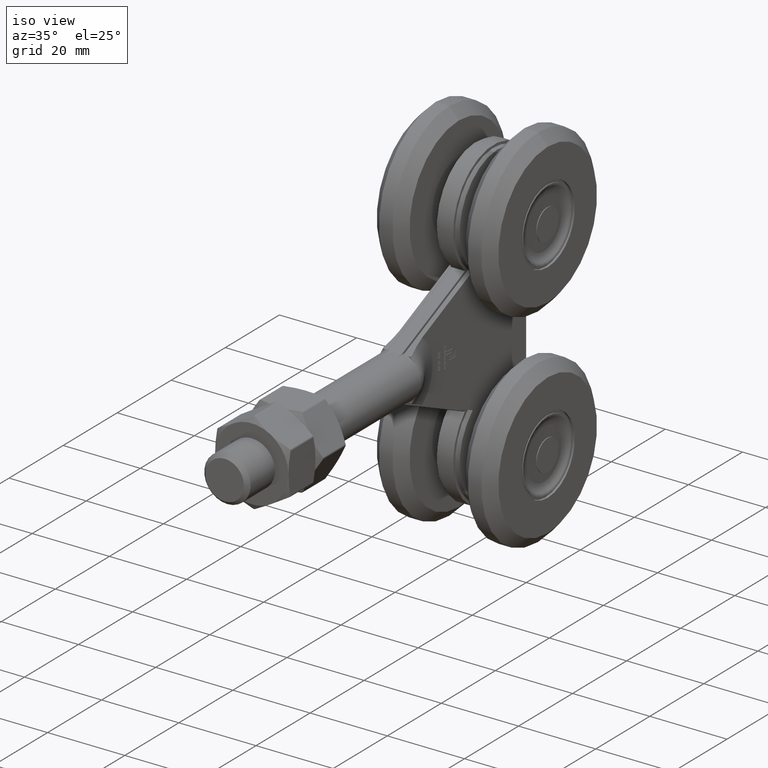
[diagram: clean part render]
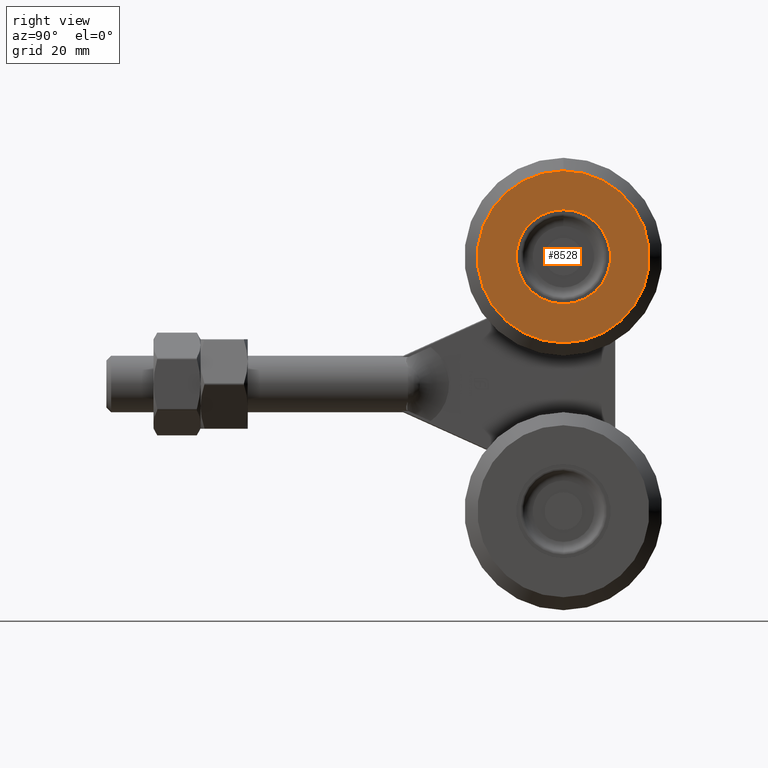
[diagram: tour spotlight — one face highlighted and labeled with its STEP entity id]
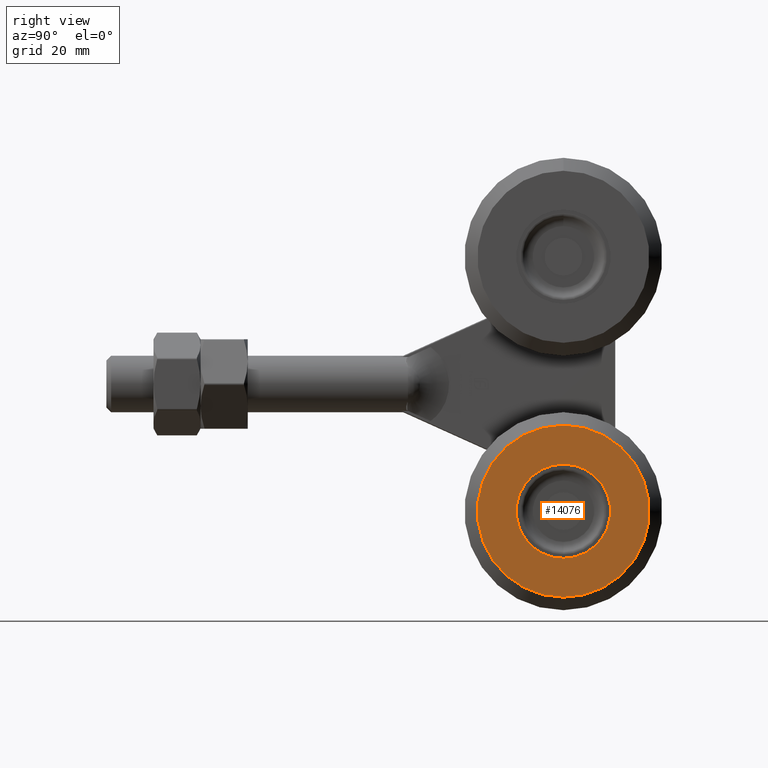
[diagram: tour spotlight — one face highlighted and labeled with its STEP entity id]
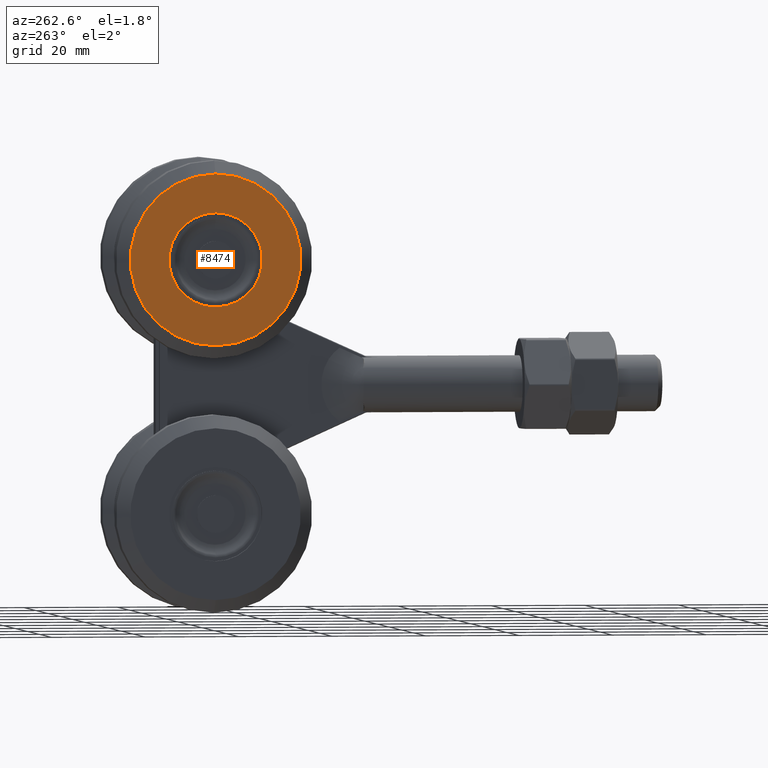
[diagram: tour spotlight — one face highlighted and labeled with its STEP entity id]
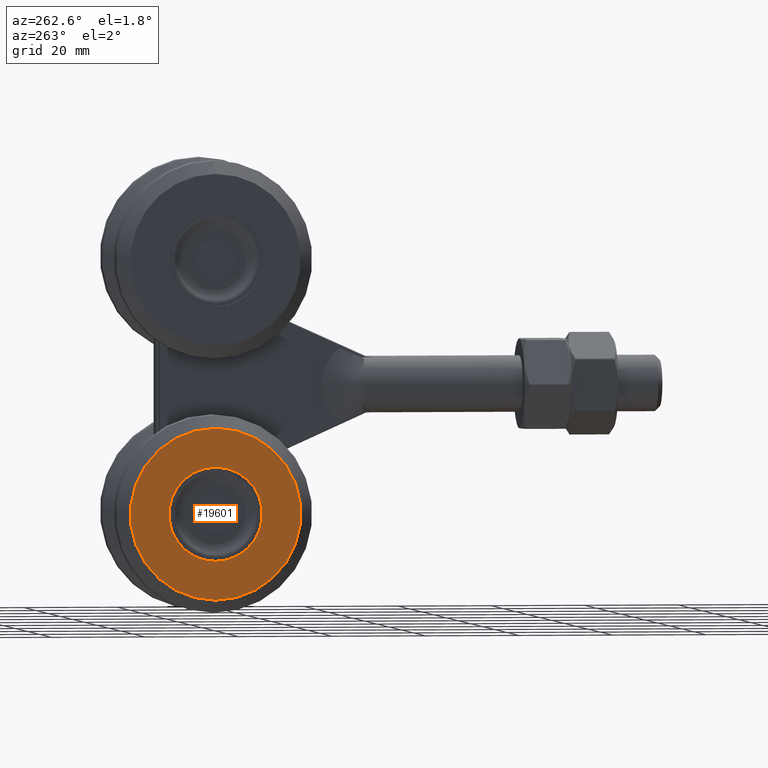
[diagram: tour spotlight — one face highlighted and labeled with its STEP entity id]
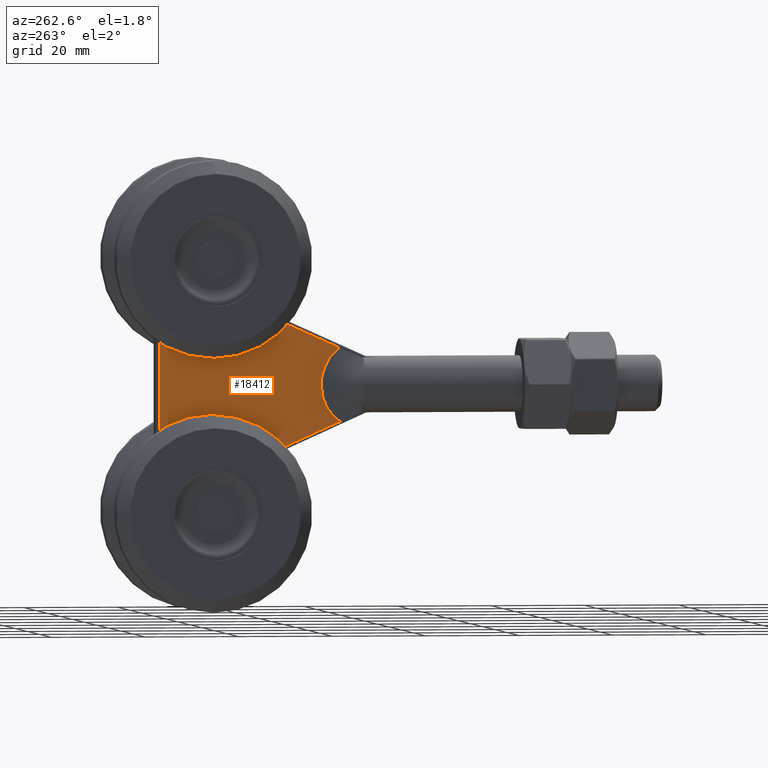
[diagram: tour spotlight — one face highlighted and labeled with its STEP entity id]
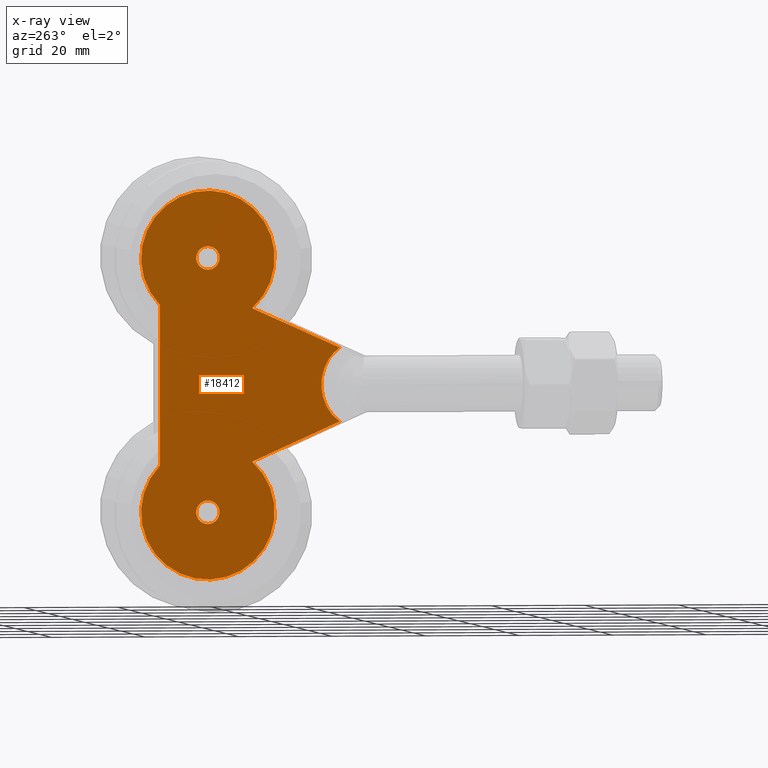
[diagram: x-ray of the same camera — body ghosted, this tour face saturated]
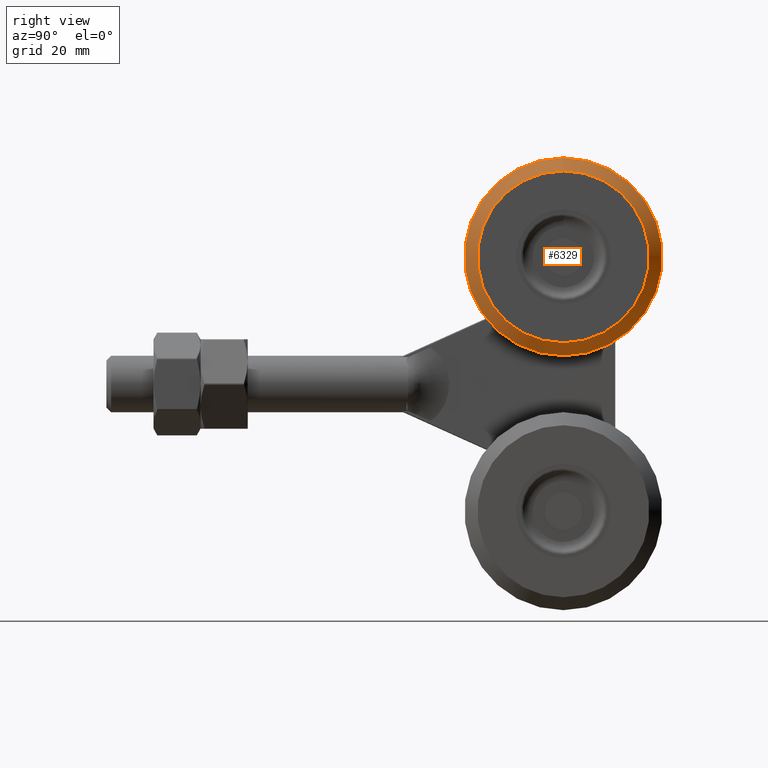
[diagram: tour spotlight — one face highlighted and labeled with its STEP entity id]
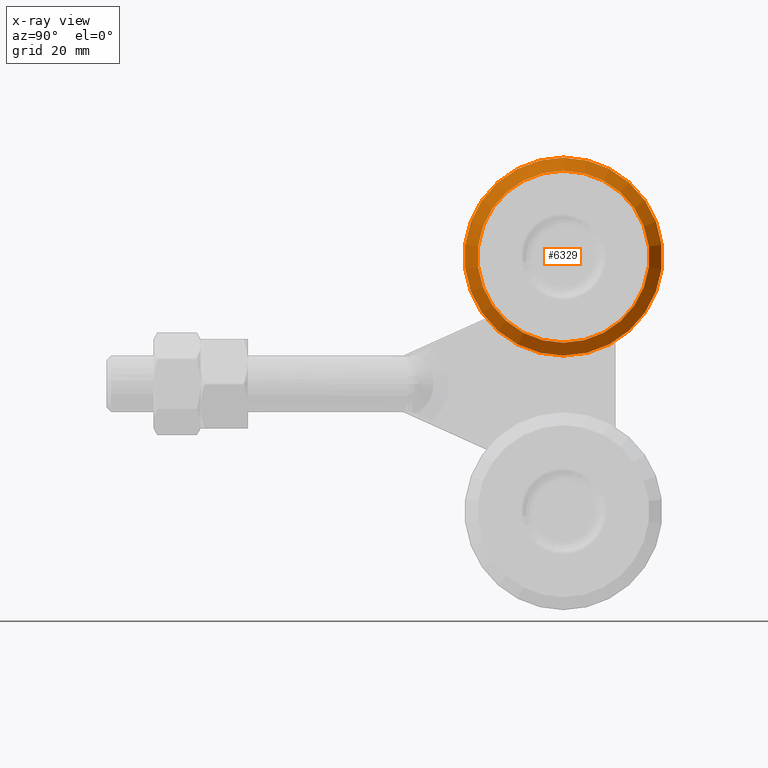
[diagram: x-ray of the same camera — body ghosted, this tour face saturated]
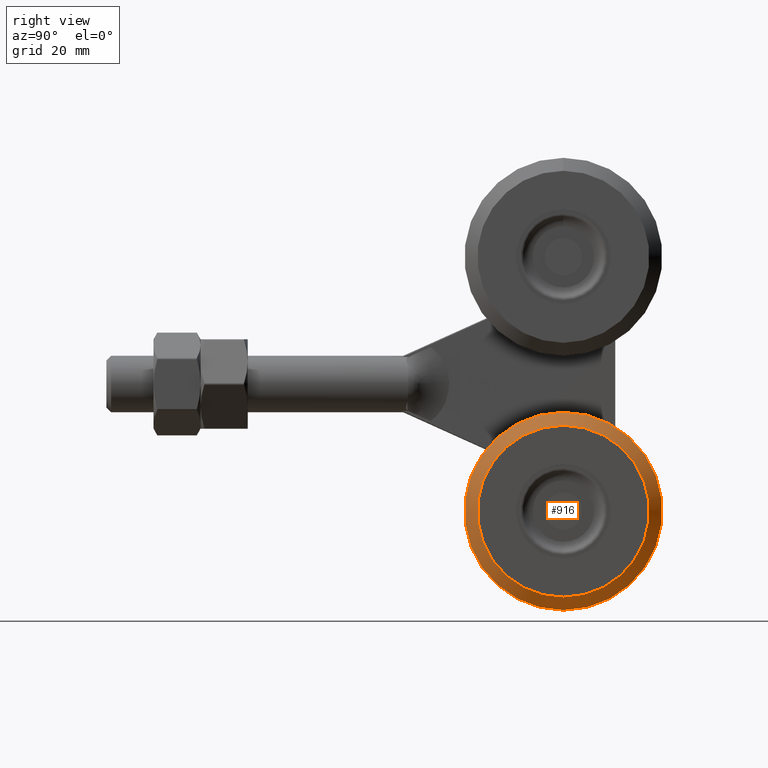
[diagram: tour spotlight — one face highlighted and labeled with its STEP entity id]
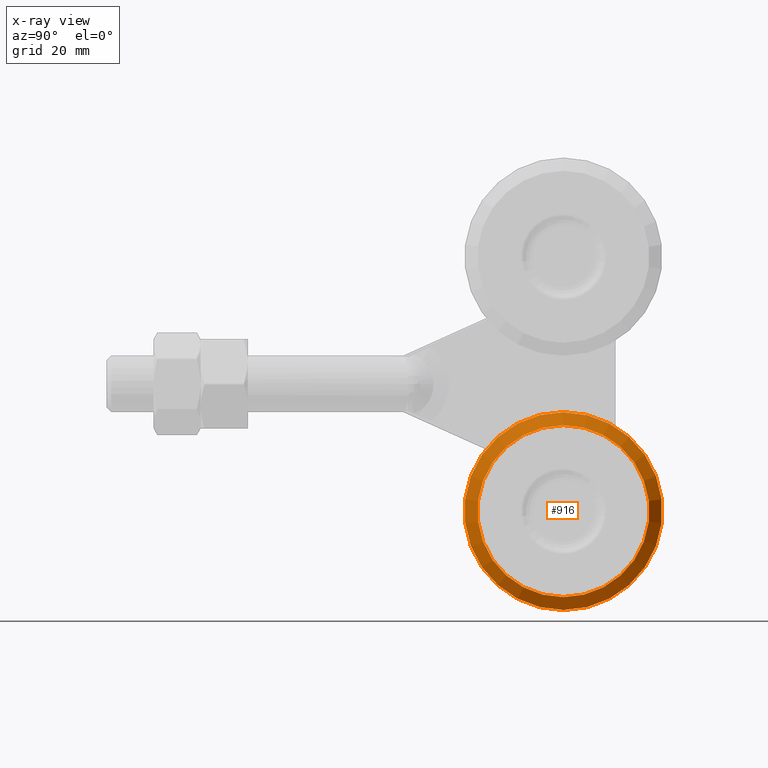
[diagram: x-ray of the same camera — body ghosted, this tour face saturated]
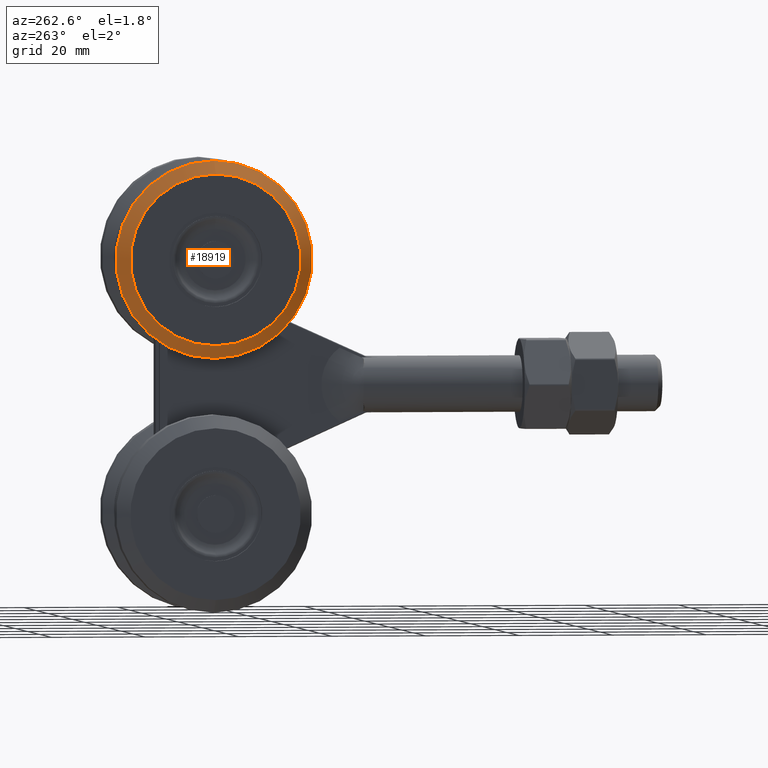
[diagram: tour spotlight — one face highlighted and labeled with its STEP entity id]
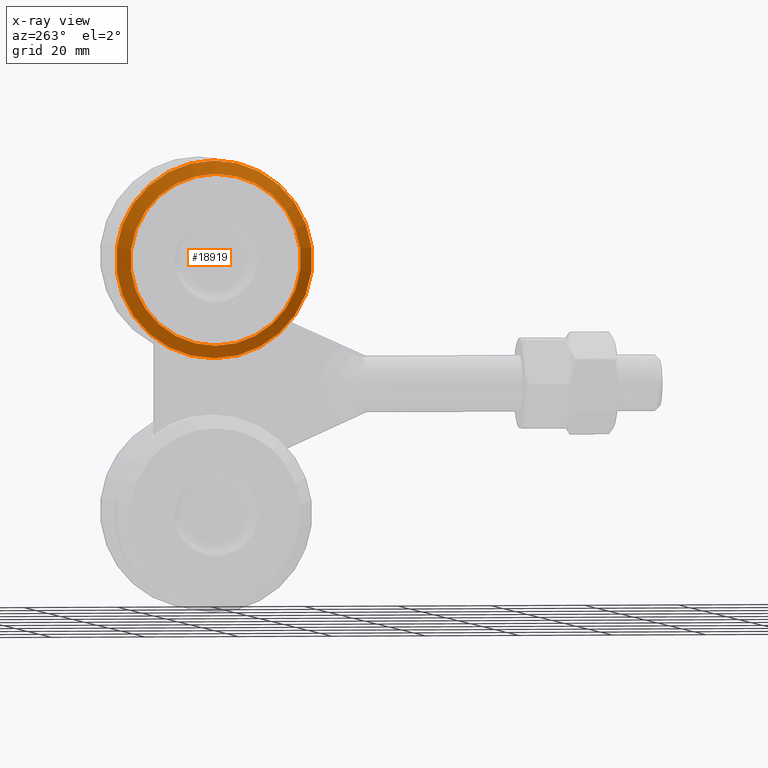
[diagram: x-ray of the same camera — body ghosted, this tour face saturated]
A machine part: a face-by-face anatomy tour. The part has 520 B-rep faces; the first image is the clean iso view, then the 8 largest visible faces are spotlighted one at a time (largest first), each with its STEP entity span.

Face 1 — right view, entity #8528. In plain terms, the highlighted planar face has unit normal (-1, 0, 0).
Definition (entity closure, byte-faithful):
#2812 = ORIENTED_EDGE ( 'NONE', *, *, #13296, .F. ) ;
#3657 = AXIS2_PLACEMENT_3D ( 'NONE', #13446, #16503, #13504 ) ;
#3667 = DIRECTION ( 'NONE',  ( 0.000000000000000000, 0.000000000000000000, 1.000000000000000000 ) ) ;
#3902 = VERTEX_POINT ( 'NONE', #18416 ) ;
#4472 = PLANE ( 'NONE',  #3657 ) ;
#5451 = CIRCLE ( 'NONE', #15652, 18.25000000000001421 ) ;
#6477 = EDGE_LOOP ( 'NONE', ( #18968 ) ) ;
#7162 = FACE_OUTER_BOUND ( 'NONE', #8350, .T. ) ;
#8129 = FACE_BOUND ( 'NONE', #6477, .T. ) ;
#8169 = CARTESIAN_POINT ( 'NONE',  ( 15.74999999999999289, 34.00000000000000000, 27.00000000000000000 ) ) ;
#8350 = EDGE_LOOP ( 'NONE', ( #2812 ) ) ;
#8528 = ADVANCED_FACE ( 'NONE', ( #7162, #8129 ), #4472, .F. ) ;
#9746 = DIRECTION ( 'NONE',  ( -1.000000000000000000, -0.000000000000000000, -0.000000000000000000 ) ) ;
#13296 = EDGE_CURVE ( 'NONE', #17190, #17190, #5451, .T. ) ;
#13446 = CARTESIAN_POINT ( 'NONE',  ( 15.74999999999999289, 52.25000000000001421, 27.00000000000000000 ) ) ;
#13504 = DIRECTION ( 'NONE',  ( -0.000000000000000000, 0.000000000000000000, 1.000000000000000000 ) ) ;
#14506 = EDGE_CURVE ( 'NONE', #3902, #3902, #16583, .T. ) ;
#15563 = CARTESIAN_POINT ( 'NONE',  ( 15.74999999999999289, 34.00000000000000000, 45.25000000000001421 ) ) ;
#15652 = AXIS2_PLACEMENT_3D ( 'NONE', #8169, #9746, #3667 ) ;
#15806 = AXIS2_PLACEMENT_3D ( 'NONE', #16195, #16269, #17583 ) ;
#16195 = CARTESIAN_POINT ( 'NONE',  ( 15.74999999999999289, 34.00000000000000000, 27.00000000000000000 ) ) ;
#16269 = DIRECTION ( 'NONE',  ( -1.000000000000000000, -0.000000000000000000, -0.000000000000000000 ) ) ;
#16503 = DIRECTION ( 'NONE',  ( -1.000000000000000000, 0.000000000000000000, -0.000000000000000000 ) ) ;
#16583 = CIRCLE ( 'NONE', #15806, 10.00000000000000533 ) ;
#17190 = VERTEX_POINT ( 'NONE', #15563 ) ;
#17583 = DIRECTION ( 'NONE',  ( 0.000000000000000000, 0.000000000000000000, 1.000000000000000000 ) ) ;
#18416 = CARTESIAN_POINT ( 'NONE',  ( 15.74999999999999289, 34.00000000000000000, 37.00000000000000711 ) ) ;
#18968 = ORIENTED_EDGE ( 'NONE', *, *, #14506, .T. ) ;

Face 2 — right view, entity #14076. In plain terms, the highlighted planar face has unit normal (-1, -0, -0).
Definition (entity closure, byte-faithful):
#646 = DIRECTION ( 'NONE',  ( 0.000000000000000000, 0.000000000000000000, -1.000000000000000000 ) ) ;
#1268 = VERTEX_POINT ( 'NONE', #3410 ) ;
#1683 = EDGE_LOOP ( 'NONE', ( #5403 ) ) ;
#2353 = CARTESIAN_POINT ( 'NONE',  ( 15.74999999999999289, 34.00000000000000000, -27.00000000000000000 ) ) ;
#2432 = CIRCLE ( 'NONE', #19533, 10.00000000000000533 ) ;
#3410 = CARTESIAN_POINT ( 'NONE',  ( 15.74999999999999289, 34.00000000000000000, -37.00000000000000711 ) ) ;
#4143 = AXIS2_PLACEMENT_3D ( 'NONE', #2353, #8333, #12924 ) ;
#4818 = AXIS2_PLACEMENT_3D ( 'NONE', #17281, #14095, #12747 ) ;
#5049 = PLANE ( 'NONE',  #4818 ) ;
#5193 = FACE_BOUND ( 'NONE', #18027, .T. ) ;
#5403 = ORIENTED_EDGE ( 'NONE', *, *, #19558, .T. ) ;
#7169 = ORIENTED_EDGE ( 'NONE', *, *, #9646, .F. ) ;
#8333 = DIRECTION ( 'NONE',  ( 1.000000000000000000, 0.000000000000000000, -0.000000000000000000 ) ) ;
#8380 = CARTESIAN_POINT ( 'NONE',  ( 15.74999999999999289, 34.00000000000000000, -45.25000000000001421 ) ) ;
#9646 = EDGE_CURVE ( 'NONE', #1268, #1268, #2432, .T. ) ;
#9822 = DIRECTION ( 'NONE',  ( 1.000000000000000000, 0.000000000000000000, -0.000000000000000000 ) ) ;
#9824 = CIRCLE ( 'NONE', #4143, 18.25000000000001421 ) ;
#12747 = DIRECTION ( 'NONE',  ( 0.000000000000000000, 0.000000000000000000, -1.000000000000000000 ) ) ;
#12924 = DIRECTION ( 'NONE',  ( 0.000000000000000000, 0.000000000000000000, -1.000000000000000000 ) ) ;
#13616 = VERTEX_POINT ( 'NONE', #8380 ) ;
#14076 = ADVANCED_FACE ( 'NONE', ( #18967, #5193 ), #5049, .F. ) ;
#14095 = DIRECTION ( 'NONE',  ( -1.000000000000000000, -0.000000000000000000, -0.000000000000000000 ) ) ;
#17281 = CARTESIAN_POINT ( 'NONE',  ( 15.74999999999999289, 52.25000000000001421, -27.00000000000000000 ) ) ;
#17327 = CARTESIAN_POINT ( 'NONE',  ( 15.74999999999999289, 34.00000000000000000, -27.00000000000000000 ) ) ;
#18027 = EDGE_LOOP ( 'NONE', ( #7169 ) ) ;
#18967 = FACE_OUTER_BOUND ( 'NONE', #1683, .T. ) ;
#19533 = AXIS2_PLACEMENT_3D ( 'NONE', #17327, #9822, #646 ) ;
#19558 = EDGE_CURVE ( 'NONE', #13616, #13616, #9824, .T. ) ;

Face 3 — auxiliary view, entity #8474. In plain terms, the highlighted planar face has unit normal (1, 0, 0).
Definition (entity closure, byte-faithful):
#2794 = DIRECTION ( 'NONE',  ( -1.000000000000000000, 0.000000000000000000, 0.000000000000000000 ) ) ;
#5031 = AXIS2_PLACEMENT_3D ( 'NONE', #18025, #18168, #13650 ) ;
#5132 = AXIS2_PLACEMENT_3D ( 'NONE', #13190, #17965, #16314 ) ;
#5548 = VERTEX_POINT ( 'NONE', #12816 ) ;
#5566 = ORIENTED_EDGE ( 'NONE', *, *, #19595, .F. ) ;
#5787 = VERTEX_POINT ( 'NONE', #13840 ) ;
#5983 = FACE_BOUND ( 'NONE', #14768, .T. ) ;
#6111 = AXIS2_PLACEMENT_3D ( 'NONE', #13369, #2794, #14911 ) ;
#7423 = EDGE_LOOP ( 'NONE', ( #8711 ) ) ;
#8474 = ADVANCED_FACE ( 'NONE', ( #19068, #5983 ), #11922, .F. ) ;
#8711 = ORIENTED_EDGE ( 'NONE', *, *, #15904, .T. ) ;
#9333 = CIRCLE ( 'NONE', #5132, 10.00000000000000533 ) ;
#11922 = PLANE ( 'NONE',  #5031 ) ;
#12816 = CARTESIAN_POINT ( 'NONE',  ( -15.74999999999999289, 34.00000000000000000, 37.00000000000000711 ) ) ;
#13190 = CARTESIAN_POINT ( 'NONE',  ( -15.74999999999999289, 34.00000000000000000, 27.00000000000000000 ) ) ;
#13369 = CARTESIAN_POINT ( 'NONE',  ( -15.74999999999999289, 34.00000000000000000, 27.00000000000000000 ) ) ;
#13650 = DIRECTION ( 'NONE',  ( 0.000000000000000000, 0.000000000000000000, 1.000000000000000000 ) ) ;
#13840 = CARTESIAN_POINT ( 'NONE',  ( -15.74999999999999289, 34.00000000000000000, 45.25000000000001421 ) ) ;
#14768 = EDGE_LOOP ( 'NONE', ( #5566 ) ) ;
#14911 = DIRECTION ( 'NONE',  ( 0.000000000000000000, 0.000000000000000000, 1.000000000000000000 ) ) ;
#15904 = EDGE_CURVE ( 'NONE', #5787, #5787, #17275, .T. ) ;
#16314 = DIRECTION ( 'NONE',  ( 0.000000000000000000, 0.000000000000000000, 1.000000000000000000 ) ) ;
#17275 = CIRCLE ( 'NONE', #6111, 18.25000000000001421 ) ;
#17965 = DIRECTION ( 'NONE',  ( -1.000000000000000000, 0.000000000000000000, 0.000000000000000000 ) ) ;
#18025 = CARTESIAN_POINT ( 'NONE',  ( -15.74999999999999289, 52.25000000000001421, 27.00000000000000000 ) ) ;
#18168 = DIRECTION ( 'NONE',  ( 1.000000000000000000, 0.000000000000000000, -0.000000000000000000 ) ) ;
#19068 = FACE_OUTER_BOUND ( 'NONE', #7423, .T. ) ;
#19595 = EDGE_CURVE ( 'NONE', #5548, #5548, #9333, .T. ) ;

Face 4 — auxiliary view, entity #19601. In plain terms, the highlighted planar face has unit normal (1, 0, 0).
Definition (entity closure, byte-faithful):
#1592 = CARTESIAN_POINT ( 'NONE',  ( -15.74999999999999289, 34.00000000000000000, -37.00000000000000711 ) ) ;
#1612 = EDGE_CURVE ( 'NONE', #3918, #3918, #14764, .T. ) ;
#2693 = CARTESIAN_POINT ( 'NONE',  ( -15.74999999999999289, 52.25000000000001421, -27.00000000000000000 ) ) ;
#3167 = VERTEX_POINT ( 'NONE', #1592 ) ;
#3909 = DIRECTION ( 'NONE',  ( 1.000000000000000000, -0.000000000000000000, -0.000000000000000000 ) ) ;
#3918 = VERTEX_POINT ( 'NONE', #13705 ) ;
#4018 = DIRECTION ( 'NONE',  ( 1.000000000000000000, -0.000000000000000000, -0.000000000000000000 ) ) ;
#5472 = CARTESIAN_POINT ( 'NONE',  ( -15.74999999999999289, 34.00000000000000000, -27.00000000000000000 ) ) ;
#5586 = FACE_OUTER_BOUND ( 'NONE', #18574, .T. ) ;
#5810 = DIRECTION ( 'NONE',  ( 1.000000000000000000, 0.000000000000000000, 0.000000000000000000 ) ) ;
#6544 = EDGE_CURVE ( 'NONE', #3167, #3167, #9574, .T. ) ;
#6938 = DIRECTION ( 'NONE',  ( 0.000000000000000000, 0.000000000000000000, -1.000000000000000000 ) ) ;
#7041 = AXIS2_PLACEMENT_3D ( 'NONE', #2693, #5810, #8662 ) ;
#8662 = DIRECTION ( 'NONE',  ( 0.000000000000000000, 0.000000000000000000, -1.000000000000000000 ) ) ;
#9574 = CIRCLE ( 'NONE', #14056, 10.00000000000000533 ) ;
#12511 = AXIS2_PLACEMENT_3D ( 'NONE', #16007, #3909, #6938 ) ;
#12914 = DIRECTION ( 'NONE',  ( 0.000000000000000000, 0.000000000000000000, -1.000000000000000000 ) ) ;
#13705 = CARTESIAN_POINT ( 'NONE',  ( -15.74999999999999289, 34.00000000000000000, -45.25000000000001421 ) ) ;
#13887 = FACE_BOUND ( 'NONE', #15983, .T. ) ;
#14056 = AXIS2_PLACEMENT_3D ( 'NONE', #5472, #4018, #12914 ) ;
#14764 = CIRCLE ( 'NONE', #12511, 18.25000000000001421 ) ;
#14926 = PLANE ( 'NONE',  #7041 ) ;
#15983 = EDGE_LOOP ( 'NONE', ( #17845 ) ) ;
#16007 = CARTESIAN_POINT ( 'NONE',  ( -15.74999999999999289, 34.00000000000000000, -27.00000000000000000 ) ) ;
#16857 = ORIENTED_EDGE ( 'NONE', *, *, #1612, .F. ) ;
#17845 = ORIENTED_EDGE ( 'NONE', *, *, #6544, .T. ) ;
#18574 = EDGE_LOOP ( 'NONE', ( #16857 ) ) ;
#19601 = ADVANCED_FACE ( 'NONE', ( #5586, #13887 ), #14926, .F. ) ;

Face 5 — auxiliary view, entity #18412. An x-ray twin of the same camera follows (body ghosted, this face saturated) — the face is partly hidden behind the body. In plain terms, the highlighted planar face has unit normal (1, 0, 0).
Definition (entity closure, byte-faithful):
#68 = CARTESIAN_POINT ( 'NONE',  ( -2.949999999999999289, 7.243037595981085097, 6.603157153562210446 ) ) ;
#126 = CARTESIAN_POINT ( 'NONE',  ( -2.950000000000000178, 5.815647244890858047, 7.854289199118236198 ) ) ;
#167 = EDGE_CURVE ( 'NONE', #886, #4045, #1935, .T. ) ;
#242 = CARTESIAN_POINT ( 'NONE',  ( -2.949999999999999734, 6.126017751163747249, -7.635042109276690248 ) ) ;
#504 = EDGE_CURVE ( 'NONE', #13567, #5998, #8469, .T. ) ;
#864 = DIRECTION ( 'NONE',  ( 0.000000000000000000, 0.000000000000000000, 1.000000000000000000 ) ) ;
#884 = EDGE_CURVE ( 'NONE', #3683, #3683, #13334, .T. ) ;
#886 = VERTEX_POINT ( 'NONE', #15958 ) ;
#1507 = CARTESIAN_POINT ( 'NONE',  ( -2.949999999999998845, 9.616668601469038791, 1.527222691131374654 ) ) ;
#1626 = CARTESIAN_POINT ( 'NONE',  ( -2.949999999999999289, 9.641814016225191963, -1.504651747912133519 ) ) ;
#1756 = CARTESIAN_POINT ( 'NONE',  ( -2.950000000000000178, 9.390783155398159110, -2.620537047359906779 ) ) ;
#1909 = CIRCLE ( 'NONE', #8234, 2.499999999999998668 ) ;
#1926 = CARTESIAN_POINT ( 'NONE',  ( -2.950000000000000178, 34.00000000000000000, 27.00000000000000711 ) ) ;
#1935 = B_SPLINE_CURVE_WITH_KNOTS ( 'NONE', 3,
 ( #7626, #242, #7551, #18194, #15282, #13808, #9068, #3107, #10870, #16790, #16926, #6029, #1756, #1626, #15148, #18252, #13878, #1507, #18318, #13740, #9189, #12143, #10679, #10818, #6215, #68, #3178, #16850, #12318, #126 ),
 .UNSPECIFIED., .F., .F.,
 ( 4, 2, 2, 2, 2, 2, 2, 2, 2, 2, 2, 2, 2, 2, 4 ),
 ( 0.005113401003457428845, 0.006247310969618774003, 0.007381220935780119161, 0.008515130901941465186, 0.009649040868102809476, 0.01078295083426415550, 0.01191686080042550153, 0.01418468073274819011, 0.01531859069890953440, 0.01645250066507088216, 0.01758641063123222645, 0.01872032059739357074, 0.02098814052971626279, 0.02212205049587760708, 0.02325596046203895137 ),
 .UNSPECIFIED. ) ;
#2001 = DIRECTION ( 'NONE',  ( 1.000000000000000000, -0.000000000000000000, -0.000000000000000000 ) ) ;
#2067 = CARTESIAN_POINT ( 'NONE',  ( -2.950000000000000178, 34.00000000000000000, 27.00000000000000711 ) ) ;
#2074 = AXIS2_PLACEMENT_3D ( 'NONE', #5471, #13233, #6985 ) ;
#2146 = ORIENTED_EDGE ( 'NONE', *, *, #12075, .F. ) ;
#2702 = VERTEX_POINT ( 'NONE', #12353 ) ;
#2831 = AXIS2_PLACEMENT_3D ( 'NONE', #1926, #2001, #17168 ) ;
#2878 = EDGE_LOOP ( 'NONE', ( #14381 ) ) ;
#3107 = CARTESIAN_POINT ( 'NONE',  ( -2.949999999999998845, 8.372378882224904117, -5.070349158831141345 ) ) ;
#3178 = CARTESIAN_POINT ( 'NONE',  ( -2.949999999999999289, 6.977244735245449192, 6.882527697257322608 ) ) ;
#3554 = CARTESIAN_POINT ( 'NONE',  ( -2.950000000000000178, 44.30000000000000426, -17.08032258589021168 ) ) ;
#3683 = VERTEX_POINT ( 'NONE', #7517 ) ;
#3820 = DIRECTION ( 'NONE',  ( 0.000000000000000000, 0.000000000000000000, -1.000000000000000000 ) ) ;
#3869 = ORIENTED_EDGE ( 'NONE', *, *, #8107, .F. ) ;
#3894 = PLANE ( 'NONE',  #7803 ) ;
#4045 = VERTEX_POINT ( 'NONE', #8514 ) ;
#4138 = ORIENTED_EDGE ( 'NONE', *, *, #884, .F. ) ;
#4275 = ORIENTED_EDGE ( 'NONE', *, *, #4885, .F. ) ;
#4833 = CARTESIAN_POINT ( 'NONE',  ( -2.950000000000000178, 44.30000000000000426, -17.08032258589021168 ) ) ;
#4885 = EDGE_CURVE ( 'NONE', #886, #13567, #17285, .T. ) ;
#5131 = DIRECTION ( 'NONE',  ( -1.000000000000000000, 0.000000000000000000, 0.000000000000000000 ) ) ;
#5329 = FACE_OUTER_BOUND ( 'NONE', #10019, .T. ) ;
#5471 = CARTESIAN_POINT ( 'NONE',  ( -2.950000000000000178, 34.00000000000000000, -27.00000000000000711 ) ) ;
#5585 = VECTOR ( 'NONE', #12265, 1000.000000000000000 ) ;
#5998 = VERTEX_POINT ( 'NONE', #3554 ) ;
#6029 = CARTESIAN_POINT ( 'NONE',  ( -2.949999999999999289, 9.285337748823234705, -2.989867264382696010 ) ) ;
#6192 = ORIENTED_EDGE ( 'NONE', *, *, #504, .F. ) ;
#6215 = CARTESIAN_POINT ( 'NONE',  ( -2.949999999999999289, 7.973945354991291090, 5.730996677117313531 ) ) ;
#6253 = FACE_BOUND ( 'NONE', #2878, .T. ) ;
#6461 = CARTESIAN_POINT ( 'NONE',  ( -2.950000000000000178, 24.52468668288769393, 16.28979750226196188 ) ) ;
#6809 = CARTESIAN_POINT ( 'NONE',  ( -2.950000000000000178, 24.52468668288769393, 16.28979750226196543 ) ) ;
#6850 = EDGE_LOOP ( 'NONE', ( #4138 ) ) ;
#6852 = CARTESIAN_POINT ( 'NONE',  ( -2.950000000000000178, 34.00000000000000000, -27.00000000000000711 ) ) ;
#6985 = DIRECTION ( 'NONE',  ( 0.000000000000000000, 0.000000000000000000, -1.000000000000000000 ) ) ;
#7517 = CARTESIAN_POINT ( 'NONE',  ( -2.950000000000000178, 34.00000000000000000, -24.50000000000000711 ) ) ;
#7551 = CARTESIAN_POINT ( 'NONE',  ( -2.949999999999999289, 6.425509132197807283, -7.392190880816819742 ) ) ;
#7626 = CARTESIAN_POINT ( 'NONE',  ( -2.950000000000000178, 5.815647244890818968, -7.854289199118218434 ) ) ;
#7773 = ORIENTED_EDGE ( 'NONE', *, *, #167, .T. ) ;
#7803 = AXIS2_PLACEMENT_3D ( 'NONE', #6852, #8314, #3820 ) ;
#8107 = EDGE_CURVE ( 'NONE', #16802, #4045, #16931, .T. ) ;
#8234 = AXIS2_PLACEMENT_3D ( 'NONE', #2067, #5131, #12770 ) ;
#8314 = DIRECTION ( 'NONE',  ( 1.000000000000000000, 0.000000000000000000, 0.000000000000000000 ) ) ;
#8428 = DIRECTION ( 'NONE',  ( -1.000000000000000000, 0.000000000000000000, 0.000000000000000000 ) ) ;
#8469 = CIRCLE ( 'NONE', #2074, 14.30000000000000426 ) ;
#8514 = CARTESIAN_POINT ( 'NONE',  ( -2.950000000000000178, 5.815647244890858047, 7.854289199118236198 ) ) ;
#9068 = CARTESIAN_POINT ( 'NONE',  ( -2.949999999999999289, 7.957028445493190993, -5.714003061587926702 ) ) ;
#9189 = CARTESIAN_POINT ( 'NONE',  ( -2.949999999999999734, 9.282277183408758958, 2.999826198397546939 ) ) ;
#9705 = DIRECTION ( 'NONE',  ( -0.000000000000000000, -0.9116214788501121324, -0.4110307522547852477 ) ) ;
#9897 = CARTESIAN_POINT ( 'NONE',  ( -2.950000000000000178, 34.00000000000000000, -27.00000000000000711 ) ) ;
#10019 = EDGE_LOOP ( 'NONE', ( #4275, #7773, #3869, #12340, #2146, #6192 ) ) ;
#10536 = CARTESIAN_POINT ( 'NONE',  ( -2.950000000000000178, 0.7000000000000006217, -5.547752567280792135 ) ) ;
#10679 = CARTESIAN_POINT ( 'NONE',  ( -2.949999999999999734, 8.883449458525424447, 4.071610409385999496 ) ) ;
#10805 = EDGE_CURVE ( 'NONE', #2702, #2702, #1909, .T. ) ;
#10818 = CARTESIAN_POINT ( 'NONE',  ( -2.949999999999998845, 8.382629777960270090, 5.097164287641810176 ) ) ;
#10870 = CARTESIAN_POINT ( 'NONE',  ( -2.949999999999999734, 8.558841819543070883, -4.737920187546530215 ) ) ;
#12075 = EDGE_CURVE ( 'NONE', #5998, #18012, #14137, .T. ) ;
#12143 = CARTESIAN_POINT ( 'NONE',  ( -2.949999999999999289, 9.031453938201110532, 3.716188967561559142 ) ) ;
#12265 = DIRECTION ( 'NONE',  ( 0.000000000000000000, -2.031253762630730311E-16, 1.000000000000000000 ) ) ;
#12318 = CARTESIAN_POINT ( 'NONE',  ( -2.949999999999998845, 6.123902175955948657, 7.636536560902349891 ) ) ;
#12340 = ORIENTED_EDGE ( 'NONE', *, *, #18249, .F. ) ;
#12353 = CARTESIAN_POINT ( 'NONE',  ( -2.950000000000000178, 34.00000000000000000, 29.50000000000000711 ) ) ;
#12770 = DIRECTION ( 'NONE',  ( 0.000000000000000000, 0.000000000000000000, 1.000000000000000000 ) ) ;
#13233 = DIRECTION ( 'NONE',  ( 1.000000000000000000, -0.000000000000000000, -0.000000000000000000 ) ) ;
#13334 = CIRCLE ( 'NONE', #14873, 2.499999999999998668 ) ;
#13376 = VECTOR ( 'NONE', #9705, 1000.000000000000000 ) ;
#13406 = CARTESIAN_POINT ( 'NONE',  ( -2.950000000000000178, 24.52468668288769393, -16.28979750226196899 ) ) ;
#13567 = VERTEX_POINT ( 'NONE', #13406 ) ;
#13740 = CARTESIAN_POINT ( 'NONE',  ( -2.949999999999998845, 9.386378007963934067, 2.636563764071189198 ) ) ;
#13808 = CARTESIAN_POINT ( 'NONE',  ( -2.949999999999999734, 7.731550150294495438, -6.020065889074786014 ) ) ;
#13878 = CARTESIAN_POINT ( 'NONE',  ( -2.949999999999999734, 9.701562824853866118, 0.7712981180410668491 ) ) ;
#14137 = LINE ( 'NONE', #4833, #5585 ) ;
#14381 = ORIENTED_EDGE ( 'NONE', *, *, #10805, .F. ) ;
#14658 = CARTESIAN_POINT ( 'NONE',  ( -2.950000000000000178, 44.29999999999999716, 17.08032258589020813 ) ) ;
#14873 = AXIS2_PLACEMENT_3D ( 'NONE', #9897, #8428, #864 ) ;
#15148 = CARTESIAN_POINT ( 'NONE',  ( -2.950000000000000178, 9.723920894895790923, -0.7526213348543131509 ) ) ;
#15282 = CARTESIAN_POINT ( 'NONE',  ( -2.949999999999999289, 7.245149292891556847, -6.600806642350537601 ) ) ;
#15617 = VECTOR ( 'NONE', #18228, 1000.000000000000000 ) ;
#15958 = CARTESIAN_POINT ( 'NONE',  ( -2.950000000000000178, 5.815647244890818968, -7.854289199118218434 ) ) ;
#16735 = FACE_BOUND ( 'NONE', #6850, .T. ) ;
#16790 = CARTESIAN_POINT ( 'NONE',  ( -2.949999999999999289, 8.890092572483400346, -4.056334394614477645 ) ) ;
#16802 = VERTEX_POINT ( 'NONE', #6809 ) ;
#16850 = CARTESIAN_POINT ( 'NONE',  ( -2.949999999999998845, 6.417884381075785960, 7.398650266748719062 ) ) ;
#16926 = CARTESIAN_POINT ( 'NONE',  ( -2.949999999999999734, 9.035210498532181944, -3.706645177812613490 ) ) ;
#16931 = LINE ( 'NONE', #6461, #13376 ) ;
#17168 = DIRECTION ( 'NONE',  ( 0.000000000000000000, 0.000000000000000000, -1.000000000000000000 ) ) ;
#17243 = CIRCLE ( 'NONE', #2831, 14.30000000000000071 ) ;
#17285 = LINE ( 'NONE', #10536, #15617 ) ;
#18012 = VERTEX_POINT ( 'NONE', #14658 ) ;
#18194 = CARTESIAN_POINT ( 'NONE',  ( -2.949999999999999289, 6.984232036785471109, -6.875489266540136590 ) ) ;
#18228 = DIRECTION ( 'NONE',  ( 0.000000000000000000, 0.9116214788501121324, -0.4110307522547852477 ) ) ;
#18249 = EDGE_CURVE ( 'NONE', #18012, #16802, #17243, .T. ) ;
#18252 = CARTESIAN_POINT ( 'NONE',  ( -2.949999999999998845, 9.723117867005401038, 0.3872130355919816136 ) ) ;
#18318 = CARTESIAN_POINT ( 'NONE',  ( -2.949999999999999734, 9.553574816316208640, 1.900262272545156783 ) ) ;
#18412 = ADVANCED_FACE ( 'NONE', ( #16735, #6253, #5329 ), #3894, .F. ) ;

Face 6 — right view, entity #6329. An x-ray twin of the same camera follows (body ghosted, this face saturated) — the face is partly hidden behind the body. In plain terms, the highlighted conical surface has half-angle 47.726 deg.
Definition (entity closure, byte-faithful):
#445 = ORIENTED_EDGE ( 'NONE', *, *, #5659, .F. ) ;
#853 = FACE_OUTER_BOUND ( 'NONE', #5724, .T. ) ;
#3625 = AXIS2_PLACEMENT_3D ( 'NONE', #18591, #14083, #4958 ) ;
#3667 = DIRECTION ( 'NONE',  ( 0.000000000000000000, 0.000000000000000000, 1.000000000000000000 ) ) ;
#3966 = FACE_BOUND ( 'NONE', #10298, .T. ) ;
#4958 = DIRECTION ( 'NONE',  ( 0.000000000000000000, 0.000000000000000000, 1.000000000000000000 ) ) ;
#5451 = CIRCLE ( 'NONE', #15652, 18.25000000000001421 ) ;
#5659 = EDGE_CURVE ( 'NONE', #16722, #16722, #7258, .T. ) ;
#5724 = EDGE_LOOP ( 'NONE', ( #445 ) ) ;
#5990 = DIRECTION ( 'NONE',  ( 0.000000000000000000, 0.000000000000000000, 1.000000000000000000 ) ) ;
#6329 = ADVANCED_FACE ( 'NONE', ( #853, #3966 ), #11360, .T. ) ;
#7258 = CIRCLE ( 'NONE', #11376, 21.00000000000000000 ) ;
#8169 = CARTESIAN_POINT ( 'NONE',  ( 15.74999999999999289, 34.00000000000000000, 27.00000000000000000 ) ) ;
#8276 = ORIENTED_EDGE ( 'NONE', *, *, #13296, .T. ) ;
#9746 = DIRECTION ( 'NONE',  ( -1.000000000000000000, -0.000000000000000000, -0.000000000000000000 ) ) ;
#10298 = EDGE_LOOP ( 'NONE', ( #8276 ) ) ;
#10442 = CARTESIAN_POINT ( 'NONE',  ( 13.24999999999999289, 34.00000000000000000, 27.00000000000000000 ) ) ;
#10716 = CARTESIAN_POINT ( 'NONE',  ( 13.24999999999999289, 34.00000000000000000, 48.00000000000000000 ) ) ;
#11360 = CONICAL_SURFACE ( 'NONE', #3625, 18.25000000000001421, 0.8329812666744308425 ) ;
#11376 = AXIS2_PLACEMENT_3D ( 'NONE', #10442, #19643, #5990 ) ;
#13296 = EDGE_CURVE ( 'NONE', #17190, #17190, #5451, .T. ) ;
#14083 = DIRECTION ( 'NONE',  ( -1.000000000000000000, -0.000000000000000000, -0.000000000000000000 ) ) ;
#15563 = CARTESIAN_POINT ( 'NONE',  ( 15.74999999999999289, 34.00000000000000000, 45.25000000000001421 ) ) ;
#15652 = AXIS2_PLACEMENT_3D ( 'NONE', #8169, #9746, #3667 ) ;
#16722 = VERTEX_POINT ( 'NONE', #10716 ) ;
#17190 = VERTEX_POINT ( 'NONE', #15563 ) ;
#18591 = CARTESIAN_POINT ( 'NONE',  ( 15.74999999999999289, 34.00000000000000000, 27.00000000000000000 ) ) ;
#19643 = DIRECTION ( 'NONE',  ( -1.000000000000000000, -0.000000000000000000, -0.000000000000000000 ) ) ;

Face 7 — right view, entity #916. An x-ray twin of the same camera follows (body ghosted, this face saturated) — the face is partly hidden behind the body. In plain terms, the highlighted conical surface has half-angle 47.726 deg.
Definition (entity closure, byte-faithful):
#100 = CARTESIAN_POINT ( 'NONE',  ( 13.24999999999999289, 34.00000000000000000, -48.00000000000000000 ) ) ;
#486 = DIRECTION ( 'NONE',  ( 1.000000000000000000, 0.000000000000000000, -0.000000000000000000 ) ) ;
#916 = ADVANCED_FACE ( 'NONE', ( #1214, #9262 ), #8111, .T. ) ;
#1214 = FACE_OUTER_BOUND ( 'NONE', #15487, .T. ) ;
#2353 = CARTESIAN_POINT ( 'NONE',  ( 15.74999999999999289, 34.00000000000000000, -27.00000000000000000 ) ) ;
#3248 = CARTESIAN_POINT ( 'NONE',  ( 15.74999999999999289, 34.00000000000000000, -27.00000000000000000 ) ) ;
#3546 = CARTESIAN_POINT ( 'NONE',  ( 13.24999999999999289, 34.00000000000000000, -27.00000000000000000 ) ) ;
#4027 = AXIS2_PLACEMENT_3D ( 'NONE', #3248, #6229, #10884 ) ;
#4080 = ORIENTED_EDGE ( 'NONE', *, *, #6532, .T. ) ;
#4143 = AXIS2_PLACEMENT_3D ( 'NONE', #2353, #8333, #12924 ) ;
#5295 = EDGE_LOOP ( 'NONE', ( #17896 ) ) ;
#5804 = CIRCLE ( 'NONE', #11759, 21.00000000000000000 ) ;
#6229 = DIRECTION ( 'NONE',  ( -1.000000000000000000, -0.000000000000000000, 0.000000000000000000 ) ) ;
#6532 = EDGE_CURVE ( 'NONE', #19101, #19101, #5804, .T. ) ;
#8111 = CONICAL_SURFACE ( 'NONE', #4027, 18.25000000000001421, 0.8329812666744308425 ) ;
#8333 = DIRECTION ( 'NONE',  ( 1.000000000000000000, 0.000000000000000000, -0.000000000000000000 ) ) ;
#8380 = CARTESIAN_POINT ( 'NONE',  ( 15.74999999999999289, 34.00000000000000000, -45.25000000000001421 ) ) ;
#9262 = FACE_BOUND ( 'NONE', #5295, .T. ) ;
#9824 = CIRCLE ( 'NONE', #4143, 18.25000000000001421 ) ;
#10884 = DIRECTION ( 'NONE',  ( 0.000000000000000000, 0.000000000000000000, -1.000000000000000000 ) ) ;
#11759 = AXIS2_PLACEMENT_3D ( 'NONE', #3546, #486, #14176 ) ;
#12924 = DIRECTION ( 'NONE',  ( 0.000000000000000000, 0.000000000000000000, -1.000000000000000000 ) ) ;
#13616 = VERTEX_POINT ( 'NONE', #8380 ) ;
#14176 = DIRECTION ( 'NONE',  ( 0.000000000000000000, 0.000000000000000000, -1.000000000000000000 ) ) ;
#15487 = EDGE_LOOP ( 'NONE', ( #4080 ) ) ;
#17896 = ORIENTED_EDGE ( 'NONE', *, *, #19558, .F. ) ;
#19101 = VERTEX_POINT ( 'NONE', #100 ) ;
#19558 = EDGE_CURVE ( 'NONE', #13616, #13616, #9824, .T. ) ;

Face 8 — auxiliary view, entity #18919. An x-ray twin of the same camera follows (body ghosted, this face saturated) — the face is partly hidden behind the body. In plain terms, the highlighted conical surface has half-angle 47.726 deg.
Definition (entity closure, byte-faithful):
#560 = CONICAL_SURFACE ( 'NONE', #3482, 18.25000000000001421, 0.8329812666744308425 ) ;
#798 = CIRCLE ( 'NONE', #3383, 21.00000000000000000 ) ;
#2191 = DIRECTION ( 'NONE',  ( -1.000000000000000000, 0.000000000000000000, 0.000000000000000000 ) ) ;
#2794 = DIRECTION ( 'NONE',  ( -1.000000000000000000, 0.000000000000000000, 0.000000000000000000 ) ) ;
#3383 = AXIS2_PLACEMENT_3D ( 'NONE', #15760, #2191, #12952 ) ;
#3482 = AXIS2_PLACEMENT_3D ( 'NONE', #15872, #9890, #7147 ) ;
#4998 = ORIENTED_EDGE ( 'NONE', *, *, #7515, .T. ) ;
#5787 = VERTEX_POINT ( 'NONE', #13840 ) ;
#6111 = AXIS2_PLACEMENT_3D ( 'NONE', #13369, #2794, #14911 ) ;
#7147 = DIRECTION ( 'NONE',  ( 0.000000000000000000, 0.000000000000000000, 1.000000000000000000 ) ) ;
#7515 = EDGE_CURVE ( 'NONE', #11020, #11020, #798, .T. ) ;
#7924 = FACE_BOUND ( 'NONE', #19473, .T. ) ;
#8633 = FACE_OUTER_BOUND ( 'NONE', #13591, .T. ) ;
#9890 = DIRECTION ( 'NONE',  ( 1.000000000000000000, -0.000000000000000000, -0.000000000000000000 ) ) ;
#10979 = ORIENTED_EDGE ( 'NONE', *, *, #15904, .F. ) ;
#11020 = VERTEX_POINT ( 'NONE', #12173 ) ;
#12173 = CARTESIAN_POINT ( 'NONE',  ( -13.24999999999999289, 34.00000000000000000, 48.00000000000000000 ) ) ;
#12952 = DIRECTION ( 'NONE',  ( 0.000000000000000000, 0.000000000000000000, 1.000000000000000000 ) ) ;
#13369 = CARTESIAN_POINT ( 'NONE',  ( -15.74999999999999289, 34.00000000000000000, 27.00000000000000000 ) ) ;
#13591 = EDGE_LOOP ( 'NONE', ( #4998 ) ) ;
#13840 = CARTESIAN_POINT ( 'NONE',  ( -15.74999999999999289, 34.00000000000000000, 45.25000000000001421 ) ) ;
#14911 = DIRECTION ( 'NONE',  ( 0.000000000000000000, 0.000000000000000000, 1.000000000000000000 ) ) ;
#15760 = CARTESIAN_POINT ( 'NONE',  ( -13.24999999999999289, 34.00000000000000000, 27.00000000000000000 ) ) ;
#15872 = CARTESIAN_POINT ( 'NONE',  ( -15.74999999999999289, 34.00000000000000000, 27.00000000000000000 ) ) ;
#15904 = EDGE_CURVE ( 'NONE', #5787, #5787, #17275, .T. ) ;
#17275 = CIRCLE ( 'NONE', #6111, 18.25000000000001421 ) ;
#18919 = ADVANCED_FACE ( 'NONE', ( #8633, #7924 ), #560, .T. ) ;
#19473 = EDGE_LOOP ( 'NONE', ( #10979 ) ) ;